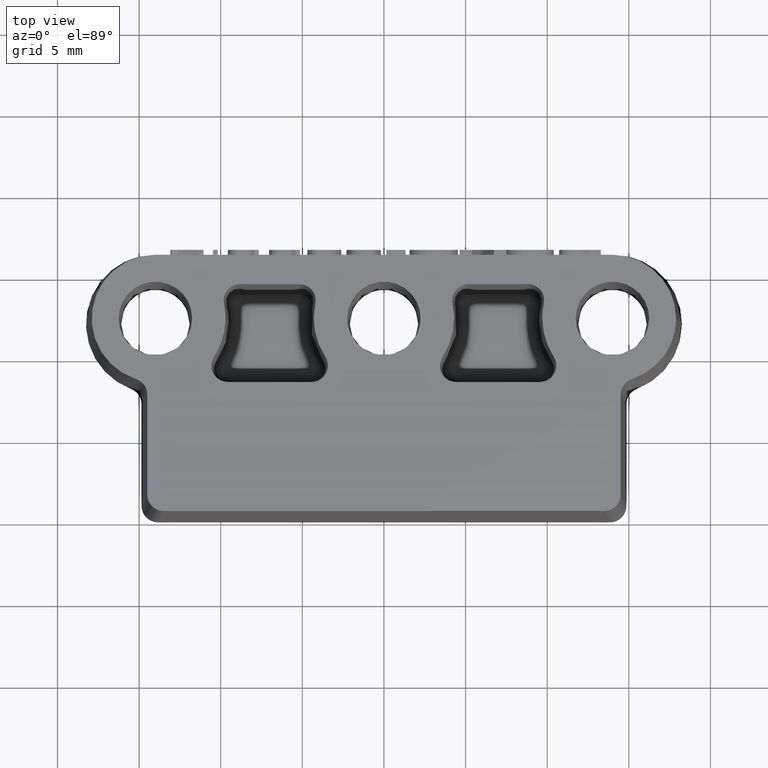
[diagram: clean part render]
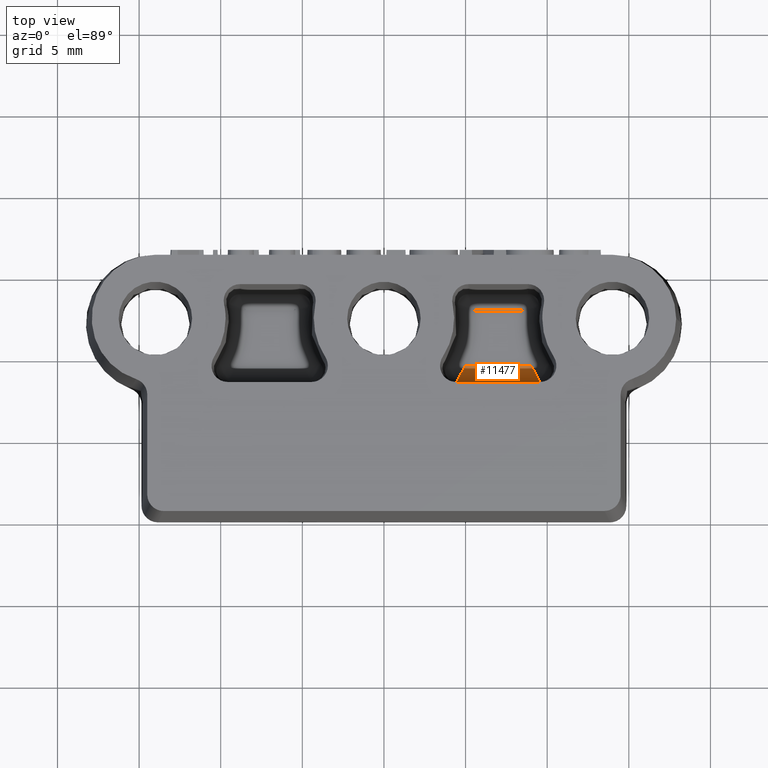
[diagram: same view with one face highlighted and labeled with its STEP entity id]
A machine part, top view. The second image highlights one B-rep face of the part: STEP entity #11477.
In plain terms, the highlighted cylindrical surface (edge-blend (fillet) strip) has radius 1 mm, axis along (-1, 0, 0).
Its self-contained STEP definition (entity closure, byte-faithful):
#6264 = VERTEX_POINT ( 'NONE', #21903 ) ;
#6832 = EDGE_LOOP ( 'NONE', ( #26166, #26123, #26074, #25990 ) ) ;
#11477 = ADVANCED_FACE ( 'NONE', ( #23510 ), #22906, .F. ) ;
#12487 = VECTOR ( 'NONE', #28291, 1000.000000000000000 ) ;
#12491 = VECTOR ( 'NONE', #28221, 1000.000000000000000 ) ;
#14061 = VERTEX_POINT ( 'NONE', #20380 ) ;
#14070 = VERTEX_POINT ( 'NONE', #20388 ) ;
#15469 = VERTEX_POINT ( 'NONE', #16417 ) ;
#16417 = CARTESIAN_POINT ( 'NONE',  ( 4.436801963200801800, 28.70143045108850200, 2.782547593562723100 ) ) ;
#16835 = B_SPLINE_CURVE_WITH_KNOTS ( 'NONE', 3,
 ( #28223, #28222, #28229, #28230, #28231, #28232, #28233, #28234, #28235, #28236, #28237, #28238, #28239, #28240, #28241, #28242, #28243, #28244, #28245, #28246, #28247, #28248, #28249, #28250, #28251, #28252, #28253, #28254, #28255, #28256, #28257, #28258, #28259, #28260, #28261, #28262, #28263, #28264 ),
 .UNSPECIFIED., .F., .F.,
 ( 4, 2, 2, 2, 2, 2, 2, 1, 2, 2, 2, 2, 1, 1, 2, 2, 2, 2, 2, 1, 4 ),
 ( 0.0000000000000000000, 0.1250000000000007800, 0.1875000000000006100, 0.2187500000000005300, 0.2500000000000004400, 0.3749999999999932300, 0.4374999999999897900, 0.4687499999999880700, 0.4843749999999874500, 0.4999999999999868400, 0.6249999999999975600, 0.6875000000000028900, 0.7187500000000085500, 0.7343750000000107700, 0.7421875000000118800, 0.7500000000000128800, 0.8750000000000069900, 0.8906250000000057700, 0.9062500000000045500, 0.9375000000000006700, 1.000000000000000000 ),
 .UNSPECIFIED. ) ;
#16869 = B_SPLINE_CURVE_WITH_KNOTS ( 'NONE', 3,
 ( #28368, #28369, #28374, #28375, #28376, #28377, #28378, #28379, #28380, #28381, #28382, #28383, #28384, #28385, #28386, #28387, #28388, #28389, #28390, #28391, #28392, #28393, #28394, #28395, #28396, #28397, #28398, #28399, #28400, #28401, #28402, #28403, #28404, #28405, #28406, #28407 ),
 .UNSPECIFIED., .F., .F.,
 ( 4, 2, 2, 2, 2, 2, 2, 2, 2, 2, 2, 2, 2, 2, 2, 2, 2, 4 ),
 ( 0.0000000000000000000, 0.1643330651577267800, 0.2464995977365901600, 0.3286661303154535500, 0.3595760683740517000, 0.3904860064326498600, 0.4523058825498462200, 0.5141257586670425800, 0.5450356967256406700, 0.5759456347842388800, 0.6300086356858363200, 0.6840716365874337500, 0.7381346374890311900, 0.7921976383906287300, 0.8441482287929715800, 0.8960988191953143100, 0.9480494095976571600, 1.000000000000000000 ),
 .UNSPECIFIED. ) ;
#20119 = EDGE_CURVE ( 'NONE', #14061, #14070, #28219, .T. ) ;
#20121 = EDGE_CURVE ( 'NONE', #6264, #14070, #16835, .T. ) ;
#20127 = EDGE_CURVE ( 'NONE', #6264, #15469, #28277, .T. ) ;
#20132 = EDGE_CURVE ( 'NONE', #15469, #14061, #16869, .T. ) ;
#20380 = CARTESIAN_POINT ( 'NONE',  ( 4.960936872472543300, 29.70127814624489600, 1.799999999999999600 ) ) ;
#20388 = CARTESIAN_POINT ( 'NONE',  ( 9.039063127527461100, 29.70127814624489600, 1.799999999999999600 ) ) ;
#21903 = CARTESIAN_POINT ( 'NONE',  ( 9.563198036799198200, 28.70143045108850200, 2.782547593562723100 ) ) ;
#22857 = DIRECTION ( 'NONE',  ( 0.0000000000000000000, 0.0000000000000000000, 1.000000000000000000 ) ) ;
#22863 = DIRECTION ( 'NONE',  ( -1.000000000000000000, 0.0000000000000000000, 0.0000000000000000000 ) ) ;
#22901 = CARTESIAN_POINT ( 'NONE',  ( 0.0000000000000000000, 29.70127814624489600, 2.799999999999999400 ) ) ;
#22906 = CYLINDRICAL_SURFACE ( 'NONE', #33947, 1.000000000000000000 ) ;
#23510 = FACE_OUTER_BOUND ( 'NONE', #6832, .T. ) ;
#25990 = ORIENTED_EDGE ( 'NONE', *, *, #20127, .F. ) ;
#26074 = ORIENTED_EDGE ( 'NONE', *, *, #20132, .F. ) ;
#26123 = ORIENTED_EDGE ( 'NONE', *, *, #20119, .F. ) ;
#26166 = ORIENTED_EDGE ( 'NONE', *, *, #20121, .T. ) ;
#28219 = LINE ( 'NONE', #28220, #12491 ) ;
#28220 = CARTESIAN_POINT ( 'NONE',  ( 9.563198036799198200, 29.70127814624489600, 1.799999999999999600 ) ) ;
#28221 = DIRECTION ( 'NONE',  ( 1.000000000000000000, 0.0000000000000000000, 0.0000000000000000000 ) ) ;
#28222 = CARTESIAN_POINT ( 'NONE',  ( 9.563194341392780000, 28.70261323910276000, 2.714785713609039400 ) ) ;
#28223 = CARTESIAN_POINT ( 'NONE',  ( 9.563198036799198200, 28.70143045108850200, 2.782547593562723100 ) ) ;
#28229 = CARTESIAN_POINT ( 'NONE',  ( 9.559282814406284200, 28.71072011308101300, 2.646530079214940700 ) ) ;
#28230 = CARTESIAN_POINT ( 'NONE',  ( 9.547553776556425100, 28.73356091251344000, 2.545612669435074200 ) ) ;
#28231 = CARTESIAN_POINT ( 'NONE',  ( 9.542667139378115900, 28.74294989531755100, 2.512219804934695300 ) ) ;
#28232 = CARTESIAN_POINT ( 'NONE',  ( 9.533871746768129500, 28.75968832076280200, 2.462789057342569300 ) ) ;
#28233 = CARTESIAN_POINT ( 'NONE',  ( 9.530695709757711900, 28.76570996176033300, 2.446421969826639800 ) ) ;
#28234 = CARTESIAN_POINT ( 'NONE',  ( 9.523855156789366600, 28.77863221911608300, 2.413956292120115400 ) ) ;
#28235 = CARTESIAN_POINT ( 'NONE',  ( 9.519714714533615000, 28.78642606836808700, 2.395916893564844100 ) ) ;
#28236 = CARTESIAN_POINT ( 'NONE',  ( 9.502550568864332800, 28.81864018821596200, 2.325922014985661900 ) ) ;
#28237 = CARTESIAN_POINT ( 'NONE',  ( 9.485489291324233500, 28.85038640618462600, 2.270612842919596200 ) ) ;
#28238 = CARTESIAN_POINT ( 'NONE',  ( 9.454902433507061900, 28.90746391248636400, 2.190963185736306300 ) ) ;
#28239 = CARTESIAN_POINT ( 'NONE',  ( 9.443874323983497000, 28.92806101745235700, 2.164969943361570800 ) ) ;
#28240 = CARTESIAN_POINT ( 'NONE',  ( 9.426083424321410200, 28.96132217237856600, 2.127135130941859600 ) ) ;
#28241 = CARTESIAN_POINT ( 'NONE',  ( 9.416875790646173500, 28.97854350686989700, 2.108506814102870200 ) ) ;
#28242 = CARTESIAN_POINT ( 'NONE',  ( 9.407199881204652700, 28.99664665398585200, 2.090374828550749500 ) ) ;
#28243 = CARTESIAN_POINT ( 'NONE',  ( 9.400645213628916300, 29.00891045830040600, 2.078404262396181600 ) ) ;
#28244 = CARTESIAN_POINT ( 'NONE',  ( 9.396605818434522900, 29.01646833626511700, 2.071246291295297100 ) ) ;
#28245 = CARTESIAN_POINT ( 'NONE',  ( 9.372563539703536500, 29.06145039562853700, 2.029550227174356200 ) ) ;
#28246 = CARTESIAN_POINT ( 'NONE',  ( 9.347804606640034200, 29.10762824069694000, 1.992811690552538200 ) ) ;
#28247 = CARTESIAN_POINT ( 'NONE',  ( 9.305584179090836000, 29.18716964868565700, 1.941696005453879200 ) ) ;
#28248 = CARTESIAN_POINT ( 'NONE',  ( 9.290663698582113400, 29.21538828733455200, 1.925332619946891200 ) ) ;
#28249 = CARTESIAN_POINT ( 'NONE',  ( 9.267012470830541900, 29.26030464240016800, 1.902322238168326700 ) ) ;
#28250 = CARTESIAN_POINT ( 'NONE',  ( 9.254869230207635400, 29.28340877072509900, 1.891201554417108800 ) ) ;
#28251 = CARTESIAN_POINT ( 'NONE',  ( 9.240146269340117500, 29.31148728420788200, 1.879022682964475200 ) ) ;
#28252 = CARTESIAN_POINT ( 'NONE',  ( 9.233717318938149200, 29.32376003451311400, 1.873987162757136300 ) ) ;
#28253 = CARTESIAN_POINT ( 'NONE',  ( 9.229404883107916300, 29.33199478298897500, 1.870672556605318400 ) ) ;
#28254 = CARTESIAN_POINT ( 'NONE',  ( 9.226501592846903000, 29.33754066372213000, 1.868493771190879800 ) ) ;
#28255 = CARTESIAN_POINT ( 'NONE',  ( 9.201871161332446600, 29.38459875068420500, 1.850279173132323200 ) ) ;
#28256 = CARTESIAN_POINT ( 'NONE',  ( 9.172006358500727400, 29.44174672281403500, 1.831569466275628300 ) ) ;
#28257 = CARTESIAN_POINT ( 'NONE',  ( 9.130889832556441400, 29.52152463311802300, 1.816246907346152500 ) ) ;
#28258 = CARTESIAN_POINT ( 'NONE',  ( 9.126216904357647800, 29.53060160167542100, 1.814627932588240600 ) ) ;
#28259 = CARTESIAN_POINT ( 'NONE',  ( 9.116662197327885400, 29.54917971638382900, 1.811589831226278100 ) ) ;
#28260 = CARTESIAN_POINT ( 'NONE',  ( 9.113255234992662300, 29.55581453315407700, 1.810606566601911100 ) ) ;
#28261 = CARTESIAN_POINT ( 'NONE',  ( 9.101549426106426900, 29.57864353157071900, 1.807429163020348300 ) ) ;
#28262 = CARTESIAN_POINT ( 'NONE',  ( 9.078131661905915800, 29.62444800932673100, 1.802126540227698200 ) ) ;
#28263 = CARTESIAN_POINT ( 'NONE',  ( 9.054695458421278400, 29.67054606928444500, 1.799999999999999800 ) ) ;
#28264 = CARTESIAN_POINT ( 'NONE',  ( 9.039063127527461100, 29.70127814624489600, 1.799999999999999600 ) ) ;
#28276 = CARTESIAN_POINT ( 'NONE',  ( 4.436801963200801800, 28.70143045108850200, 2.782547593562716000 ) ) ;
#28277 = LINE ( 'NONE', #28276, #12487 ) ;
#28291 = DIRECTION ( 'NONE',  ( -1.000000000000000000, -0.0000000000000000000, -0.0000000000000000000 ) ) ;
#28368 = CARTESIAN_POINT ( 'NONE',  ( 4.436801963200801800, 28.70143045108850200, 2.782547593562723100 ) ) ;
#28369 = CARTESIAN_POINT ( 'NONE',  ( 4.436802182080645800, 28.70321303938719400, 2.680423178327054700 ) ) ;
#28374 = CARTESIAN_POINT ( 'NONE',  ( 4.444999703298005800, 28.71947209887661100, 2.591089461257217500 ) ) ;
#28375 = CARTESIAN_POINT ( 'NONE',  ( 4.465025418850745900, 28.75767019911291200, 2.466075067841254900 ) ) ;
#28376 = CARTESIAN_POINT ( 'NONE',  ( 4.473108808265022800, 28.77292440991795900, 2.425779021734809900 ) ) ;
#28377 = CARTESIAN_POINT ( 'NONE',  ( 4.491910198714043300, 28.80822575510930200, 2.347963820187797300 ) ) ;
#28378 = CARTESIAN_POINT ( 'NONE',  ( 4.502628199748788700, 28.82827288949560400, 2.310444664747228300 ) ) ;
#28379 = CARTESIAN_POINT ( 'NONE',  ( 4.519066006443639000, 28.85898737229767600, 2.260739997787112500 ) ) ;
#28380 = CARTESIAN_POINT ( 'NONE',  ( 4.523777610374232000, 28.86778633578497700, 2.247251082009594100 ) ) ;
#28381 = CARTESIAN_POINT ( 'NONE',  ( 4.533598636227585700, 28.88612243659342100, 2.220579478633737800 ) ) ;
#28382 = CARTESIAN_POINT ( 'NONE',  ( 4.538708058150347400, 28.89565957391457800, 2.207396791035399100 ) ) ;
#28383 = CARTESIAN_POINT ( 'NONE',  ( 4.554575000912348200, 28.92527642360018800, 2.168473208650826900 ) ) ;
#28384 = CARTESIAN_POINT ( 'NONE',  ( 4.565871198745310400, 28.94636157368675800, 2.143356794275038000 ) ) ;
#28385 = CARTESIAN_POINT ( 'NONE',  ( 4.589590466423646700, 28.99066998496590100, 2.095669983373596800 ) ) ;
#28386 = CARTESIAN_POINT ( 'NONE',  ( 4.602004353953103300, 29.01387925384618100, 2.073071527794601000 ) ) ;
#28387 = CARTESIAN_POINT ( 'NONE',  ( 4.621116340623313300, 29.04966592897761400, 2.041325873424806800 ) ) ;
#28388 = CARTESIAN_POINT ( 'NONE',  ( 4.627568862076048000, 29.06175694932325700, 2.031102660134657800 ) ) ;
#28389 = CARTESIAN_POINT ( 'NONE',  ( 4.640580919246971800, 29.08616161010985500, 2.011421010585780600 ) ) ;
#28390 = CARTESIAN_POINT ( 'NONE',  ( 4.647140454965156500, 29.09847525055080900, 2.001962574327052400 ) ) ;
#28391 = CARTESIAN_POINT ( 'NONE',  ( 4.665242093489145400, 29.13249234734098200, 1.977077272232219600 ) ) ;
#28392 = CARTESIAN_POINT ( 'NONE',  ( 4.677213478395779100, 29.15503159862728900, 1.962020155037973000 ) ) ;
#28393 = CARTESIAN_POINT ( 'NONE',  ( 4.701816747224913100, 29.20145829266561000, 1.933661019633706700 ) ) ;
#28394 = CARTESIAN_POINT ( 'NONE',  ( 4.714448631147418700, 29.22534573541763000, 1.920359001423687500 ) ) ;
#28395 = CARTESIAN_POINT ( 'NONE',  ( 4.740124522750317500, 29.27402443105875600, 1.895713454625117800 ) ) ;
#28396 = CARTESIAN_POINT ( 'NONE',  ( 4.753168530430713200, 29.29881568394784700, 1.884369926036566700 ) ) ;
#28397 = CARTESIAN_POINT ( 'NONE',  ( 4.779420294291411700, 29.34885761853441700, 1.863844749118176200 ) ) ;
#28398 = CARTESIAN_POINT ( 'NONE',  ( 4.792628050471717100, 29.37410830023188900, 1.854663100788335600 ) ) ;
#28399 = CARTESIAN_POINT ( 'NONE',  ( 4.818444521055908100, 29.42363779403814000, 1.838977621470670100 ) ) ;
#28400 = CARTESIAN_POINT ( 'NONE',  ( 4.831251262444191700, 29.44829408836031300, 1.832217882758616400 ) ) ;
#28401 = CARTESIAN_POINT ( 'NONE',  ( 4.857046697204828500, 29.49813218561092000, 1.820585941362727400 ) ) ;
#28402 = CARTESIAN_POINT ( 'NONE',  ( 4.870035390577182700, 29.52331398853935700, 1.815713738678892600 ) ) ;
#28403 = CARTESIAN_POINT ( 'NONE',  ( 4.896065254079312400, 29.57395859970226600, 1.807890949920175600 ) ) ;
#28404 = CARTESIAN_POINT ( 'NONE',  ( 4.909106424209085200, 29.59942140793674200, 1.804940363845292800 ) ) ;
#28405 = CARTESIAN_POINT ( 'NONE',  ( 4.935111765999400800, 29.65038352641151300, 1.800994888885205000 ) ) ;
#28406 = CARTESIAN_POINT ( 'NONE',  ( 4.948075937659942800, 29.67588283665180200, 1.800000000000000000 ) ) ;
#28407 = CARTESIAN_POINT ( 'NONE',  ( 4.960936872472543300, 29.70127814624489600, 1.799999999999999600 ) ) ;
#33947 = AXIS2_PLACEMENT_3D ( 'NONE', #22901, #22863, #22857 ) ;